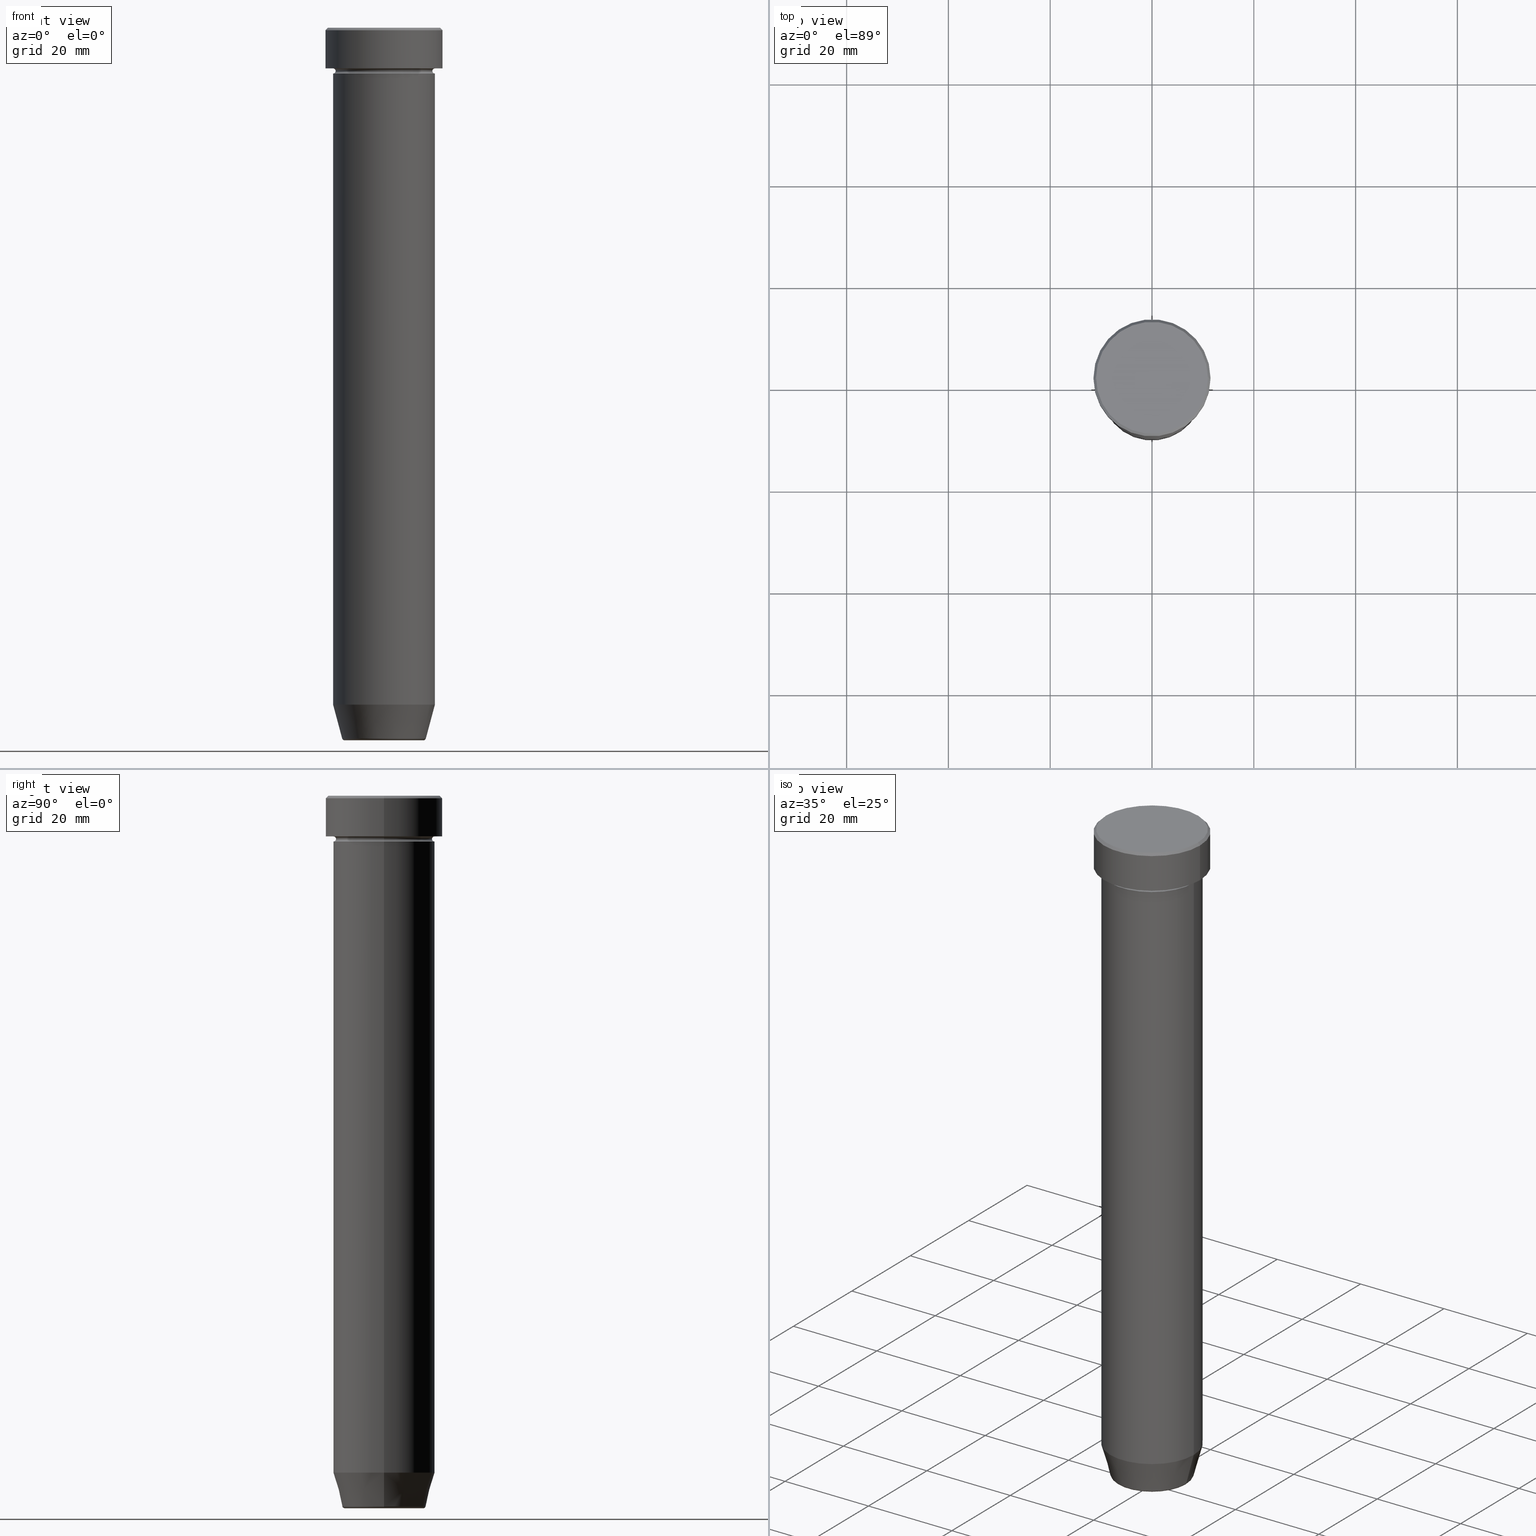
[diagram: canonical four-view strip — front | top / right | iso, engineering-drawing reading convention]
A machine part, canonical four-view strip (front | top / right | iso — engineering-drawing reading convention). The complete STEP part file that produces these views, byte-faithful:
ISO-10303-21;
HEADER;
FILE_DESCRIPTION (( 'STEP AP203' ),
    '1' );
FILE_NAME ('0ed5.STEP',
    '2024-01-02T20:52:45',
    ( '' ),
    ( '' ),
    'SwSTEP 2.0',
    'SolidWorks 2019',
    '' );
FILE_SCHEMA (( 'CONFIG_CONTROL_DESIGN' ));
ENDSEC;

DATA;
#1 = CARTESIAN_POINT ( 'NONE',  ( -8.223655072137175281, 1.115877042642910870E-15, -139.6294095225512706 ) ) ;
#2 = EDGE_CURVE ( 'NONE', #326, #137, #166, .T. ) ;
#3 = AXIS2_PLACEMENT_3D ( 'NONE', #437, #260, #528 ) ;
#4 = CYLINDRICAL_SURFACE ( 'NONE', #171, 11.50000000000000000 ) ;
#5 = CONICAL_SURFACE ( 'NONE', #88, 8.124355652982124809, 0.2617993877991501850 ) ;
#6 = ORGANIZATION ( 'NEUR�EN�', 'NEUR�EN�', '' ) ;
#7 = CARTESIAN_POINT ( 'NONE',  ( 0.000000000000000000, 0.000000000000000000, -0.5000000000000073275 ) ) ;
#8 = EDGE_CURVE ( 'NONE', #214, #175, #419, .T. ) ;
#9 = CARTESIAN_POINT ( 'NONE',  ( -9.999999999999998224, 1.224646799147353059E-15, 0.000000000000000000 ) ) ;
#10 = DIRECTION ( 'NONE',  ( 1.000000000000000000, 0.000000000000000000, 0.000000000000000000 ) ) ;
#11 = VECTOR ( 'NONE', #462, 1000.000000000000000 ) ;
#12 = EDGE_LOOP ( 'NONE', ( #294, #152, #541, #532 ) ) ;
#13 = CARTESIAN_POINT ( 'NONE',  ( 0.000000000000000000, 0.000000000000000000, -9.000000000000001776 ) ) ;
#14 = ORIENTED_EDGE ( 'NONE', *, *, #549, .F. ) ;
#15 = CARTESIAN_POINT ( 'NONE',  ( 0.000000000000000000, 0.000000000000000000, -139.4999999999999716 ) ) ;
#16 = ADVANCED_FACE ( 'NONE', ( #43, #125 ), #227, .T. ) ;
#17 = DIRECTION ( 'NONE',  ( -0.000000000000000000, -0.000000000000000000, 1.000000000000000000 ) ) ;
#18 = ORIENTED_EDGE ( 'NONE', *, *, #8, .T. ) ;
#19 = DIRECTION ( 'NONE',  ( -0.000000000000000000, -0.000000000000000000, 1.000000000000000000 ) ) ;
#20 = VERTEX_POINT ( 'NONE', #364 ) ;
#21 = CIRCLE ( 'NONE', #385, 7.740692158992648508 ) ;
#22 = CIRCLE ( 'NONE', #523, 10.00000000000000000 ) ;
#23 = DIRECTION ( 'NONE',  ( -0.000000000000000000, -0.000000000000000000, 1.000000000000000000 ) ) ;
#24 = FACE_OUTER_BOUND ( 'NONE', #291, .T. ) ;
#25 = ORIENTED_EDGE ( 'NONE', *, *, #561, .F. ) ;
#26 = EDGE_CURVE ( 'NONE', #157, #261, #53, .T. ) ;
#27 = APPLICATION_PROTOCOL_DEFINITION ( 'international standard', 'config_control_design', 1994, #263 ) ;
#28 = DIRECTION ( 'NONE',  ( -0.000000000000000000, -0.000000000000000000, 1.000000000000000000 ) ) ;
#29 = ORIENTED_EDGE ( 'NONE', *, *, #26, .T. ) ;
#30 = DIRECTION ( 'NONE',  ( 1.000000000000000000, 0.000000000000000000, 0.000000000000000000 ) ) ;
#31 = DIRECTION ( 'NONE',  ( -0.000000000000000000, -0.000000000000000000, 1.000000000000000000 ) ) ;
#32 = ORIENTED_EDGE ( 'NONE', *, *, #8, .F. ) ;
#33 = AXIS2_PLACEMENT_3D ( 'NONE', #242, #102, #241 ) ;
#34 = PERSON_AND_ORGANIZATION_ROLE ( 'classification_officer' ) ;
#35 = CARTESIAN_POINT ( 'NONE',  ( 0.000000000000000000, 0.000000000000000000, -8.000000000000000000 ) ) ;
#36 = ORIENTED_EDGE ( 'NONE', *, *, #380, .F. ) ;
#37 = DATE_AND_TIME ( #553, #425 ) ;
#38 = DIRECTION ( 'NONE',  ( -0.000000000000000000, -0.000000000000000000, 1.000000000000000000 ) ) ;
#39 = EDGE_CURVE ( 'NONE', #137, #326, #147, .T. ) ;
#40 = ORIENTED_EDGE ( 'NONE', *, *, #365, .F. ) ;
#41 = DIRECTION ( 'NONE',  ( 1.000000000000000000, 0.000000000000000000, 0.000000000000000000 ) ) ;
#42 = CC_DESIGN_PERSON_AND_ORGANIZATION_ASSIGNMENT ( #414, #34, ( #369 ) ) ;
#43 = FACE_BOUND ( 'NONE', #110, .T. ) ;
#44 = APPROVAL_ROLE ( '' ) ;
#45 = DIRECTION ( 'NONE',  ( 0.000000000000000000, 0.000000000000000000, -1.000000000000000000 ) ) ;
#46 = AXIS2_PLACEMENT_3D ( 'NONE', #397, #382, #575 ) ;
#47 = APPLICATION_CONTEXT ( 'configuration controlled 3d designs of mechanical parts and assemblies' ) ;
#48 = ADVANCED_FACE ( 'NONE', ( #354 ), #570, .T. ) ;
#49 = DATE_TIME_ROLE ( 'creation_date' ) ;
#50 = DIRECTION ( 'NONE',  ( -0.000000000000000000, -0.000000000000000000, 1.000000000000000000 ) ) ;
#51 = CC_DESIGN_PERSON_AND_ORGANIZATION_ASSIGNMENT ( #417, #232, ( #535 ) ) ;
#52 = PLANE ( 'NONE',  #476 ) ;
#53 = CIRCLE ( 'NONE', #187, 9.999999999999998224 ) ;
#54 = EDGE_LOOP ( 'NONE', ( #224, #593 ) ) ;
#55 = DIRECTION ( 'NONE',  ( 0.000000000000000000, 0.000000000000000000, -1.000000000000000000 ) ) ;
#56 = AXIS2_PLACEMENT_3D ( 'NONE', #270, #589, #272 ) ;
#57 = CIRCLE ( 'NONE', #105, 9.500000000000000000 ) ;
#58 = CARTESIAN_POINT ( 'NONE',  ( 11.50000000000000000, 0.000000000000000000, -8.000000000000000000 ) ) ;
#59 = EDGE_CURVE ( 'NONE', #20, #493, #394, .T. ) ;
#60 = CARTESIAN_POINT ( 'NONE',  ( -11.50000000000000000, 1.408343819019456176E-15, 0.000000000000000000 ) ) ;
#61 = AXIS2_PLACEMENT_3D ( 'NONE', #443, #531, #298 ) ;
#62 = CARTESIAN_POINT ( 'NONE',  ( 0.000000000000000000, 0.000000000000000000, -8.500000000000000000 ) ) ;
#63 = CIRCLE ( 'NONE', #596, 11.50000000000000000 ) ;
#64 = EDGE_LOOP ( 'NONE', ( #577, #480, #440, #274 ) ) ;
#65 = CC_DESIGN_PERSON_AND_ORGANIZATION_ASSIGNMENT ( #83, #222, ( #494 ) ) ;
#66 = DIRECTION ( 'NONE',  ( -0.000000000000000000, -0.000000000000000000, 1.000000000000000000 ) ) ;
#67 = ORIENTED_EDGE ( 'NONE', *, *, #207, .T. ) ;
#68 = APPLICATION_PROTOCOL_DEFINITION ( 'international standard', 'config_control_design', 1994, #47 ) ;
#69 = DIRECTION ( 'NONE',  ( -0.000000000000000000, -0.000000000000000000, 1.000000000000000000 ) ) ;
#70 = ORIENTED_EDGE ( 'NONE', *, *, #72, .T. ) ;
#71 = CARTESIAN_POINT ( 'NONE',  ( 0.000000000000000000, 0.000000000000000000, -139.9999999999999716 ) ) ;
#72 = EDGE_CURVE ( 'NONE', #282, #185, #139, .T. ) ;
#73 = ORIENTED_EDGE ( 'NONE', *, *, #571, .T. ) ;
#74 = AXIS2_PLACEMENT_3D ( 'NONE', #525, #536, #387 ) ;
#75 = CONICAL_SURFACE ( 'NONE', #99, 8.124355652982124809, 0.2617993877991501850 ) ;
#76 = DIRECTION ( 'NONE',  ( -0.000000000000000000, -0.000000000000000000, 1.000000000000000000 ) ) ;
#77 = CARTESIAN_POINT ( 'NONE',  ( 9.999999999999998224, 0.000000000000000000, 0.000000000000000000 ) ) ;
#78 = CC_DESIGN_DATE_AND_TIME_ASSIGNMENT ( #362, #318, ( #369 ) ) ;
#79 = ORIENTED_EDGE ( 'NONE', *, *, #502, .T. ) ;
#80 = LINE ( 'NONE', #161, #376 ) ;
#81 = CARTESIAN_POINT ( 'NONE',  ( -7.740692158992648508, 9.775343368540027302E-16, -139.9999999999999716 ) ) ;
#82 = EDGE_LOOP ( 'NONE', ( #123, #455 ) ) ;
#83 = PERSON_AND_ORGANIZATION ( #101, #6 ) ;
#84 = DIRECTION ( 'NONE',  ( 1.000000000000000000, 0.000000000000000000, 0.000000000000000000 ) ) ;
#85 = ORIENTED_EDGE ( 'NONE', *, *, #431, .T. ) ;
#86 = AXIS2_PLACEMENT_3D ( 'NONE', #555, #50, #314 ) ;
#87 = ADVANCED_FACE ( 'NONE', ( #202 ), #539, .T. ) ;
#88 = AXIS2_PLACEMENT_3D ( 'NONE', #176, #546, #223 ) ;
#89 = CIRCLE ( 'NONE', #172, 11.00000000000000000 ) ;
#90 = DIRECTION ( 'NONE',  ( -0.000000000000000000, -0.000000000000000000, 1.000000000000000000 ) ) ;
#91 = EDGE_LOOP ( 'NONE', ( #461, #501, #163, #268 ) ) ;
#92 = APPROVAL_DATE_TIME ( #37, #156 ) ;
#93 = FACE_OUTER_BOUND ( 'NONE', #82, .T. ) ;
#94 = ORIENTED_EDGE ( 'NONE', *, *, #262, .T. ) ;
#95 = CARTESIAN_POINT ( 'NONE',  ( -10.00000000000000000, 0.000000000000000000, -8.500000000000000000 ) ) ;
#96 = EDGE_CURVE ( 'NONE', #261, #493, #479, .T. ) ;
#97 = CIRCLE ( 'NONE', #284, 9.999999999999998224 ) ;
#98 = FACE_OUTER_BOUND ( 'NONE', #64, .T. ) ;
#99 = AXIS2_PLACEMENT_3D ( 'NONE', #71, #112, #524 ) ;
#100 = CARTESIAN_POINT ( 'NONE',  ( 0.000000000000000000, 0.000000000000000000, -132.9999999999999432 ) ) ;
#101 = PERSON ( 'NEUR�EN�', 'NEUR�EN�', 'NEUR�EN�', ('NEUR�EN�'), ('NEUR�EN�'), ('NEUR�EN�') ) ;
#102 = DIRECTION ( 'NONE',  ( -0.000000000000000000, -0.000000000000000000, 1.000000000000000000 ) ) ;
#103 = EDGE_CURVE ( 'NONE', #526, #208, #205, .T. ) ;
#104 = CARTESIAN_POINT ( 'NONE',  ( 0.000000000000000000, 0.000000000000000000, -22.00000000000000000 ) ) ;
#105 = AXIS2_PLACEMENT_3D ( 'NONE', #62, #23, #390 ) ;
#106 = DIRECTION ( 'NONE',  ( -0.000000000000000000, -0.000000000000000000, 1.000000000000000000 ) ) ;
#107 = DIRECTION ( 'NONE',  ( 0.000000000000000000, -0.000000000000000000, 1.000000000000000000 ) ) ;
#108 = EDGE_CURVE ( 'NONE', #175, #114, #309, .T. ) ;
#109 = AXIS2_PLACEMENT_3D ( 'NONE', #188, #38, #41 ) ;
#110 = EDGE_LOOP ( 'NONE', ( #203, #447 ) ) ;
#111 = CC_DESIGN_PERSON_AND_ORGANIZATION_ASSIGNMENT ( #506, #138, ( #535 ) ) ;
#112 = DIRECTION ( 'NONE',  ( -0.000000000000000000, -0.000000000000000000, 1.000000000000000000 ) ) ;
#113 = CARTESIAN_POINT ( 'NONE',  ( 10.00000000000000000, 0.000000000000000000, 0.000000000000000000 ) ) ;
#114 = VERTEX_POINT ( 'NONE', #116 ) ;
#115 = EDGE_CURVE ( 'NONE', #175, #137, #475, .T. ) ;
#116 = CARTESIAN_POINT ( 'NONE',  ( 10.00000000000000000, 0.000000000000000000, -9.000000000000001776 ) ) ;
#117 = ORIENTED_EDGE ( 'NONE', *, *, #236, .T. ) ;
#118 = DIRECTION ( 'NONE',  ( -0.000000000000000000, -0.000000000000000000, 1.000000000000000000 ) ) ;
#119 = VERTEX_POINT ( 'NONE', #496 ) ;
#120 = AXIS2_PLACEMENT_3D ( 'NONE', #184, #90, #363 ) ;
#121 = COORDINATED_UNIVERSAL_TIME_OFFSET ( 1, 0, .AHEAD. ) ;
#122 = FACE_OUTER_BOUND ( 'NONE', #543, .T. ) ;
#123 = ORIENTED_EDGE ( 'NONE', *, *, #431, .F. ) ;
#124 = CARTESIAN_POINT ( 'NONE',  ( 0.000000000000000000, 0.000000000000000000, -22.00000000000000000 ) ) ;
#125 = FACE_OUTER_BOUND ( 'NONE', #297, .T. ) ;
#126 = ADVANCED_FACE ( 'NONE', ( #24 ), #398, .F. ) ;
#127 = COORDINATED_UNIVERSAL_TIME_OFFSET ( 1, 0, .AHEAD. ) ;
#128 = DIRECTION ( 'NONE',  ( 0.000000000000000000, -0.000000000000000000, 1.000000000000000000 ) ) ;
#129 = ORIENTED_EDGE ( 'NONE', *, *, #164, .T. ) ;
#130 = AXIS2_PLACEMENT_3D ( 'NONE', #217, #391, #169 ) ;
#131 = CC_DESIGN_APPROVAL ( #303, ( #535 ) ) ;
#132 = APPROVAL_DATE_TIME ( #230, #303 ) ;
#133 = CARTESIAN_POINT ( 'NONE',  ( -9.500000000000000000, 1.194030629168669469E-15, -8.500000000000000000 ) ) ;
#134 = EDGE_LOOP ( 'NONE', ( #40, #129, #352, #14 ) ) ;
#135 = ADVANCED_FACE ( 'NONE', ( #122 ), #498, .T. ) ;
#136 = CARTESIAN_POINT ( 'NONE',  ( 0.000000000000000000, 0.000000000000000000, -139.6294095225512706 ) ) ;
#137 = VERTEX_POINT ( 'NONE', #395 ) ;
#138 = PERSON_AND_ORGANIZATION_ROLE ( 'creator' ) ;
#139 = CIRCLE ( 'NONE', #3, 7.740692158992648508 ) ;
#140 = DIRECTION ( 'NONE',  ( -1.000000000000000000, 1.224646799147353454E-16, 0.000000000000000000 ) ) ;
#141 = AXIS2_PLACEMENT_3D ( 'NONE', #409, #128, #319 ) ;
#142 = DIRECTION ( 'NONE',  ( -0.000000000000000000, -0.000000000000000000, 1.000000000000000000 ) ) ;
#143 = APPROVAL_PERSON_ORGANIZATION ( #349, #174, #168 ) ;
#144 = CARTESIAN_POINT ( 'NONE',  ( 0.000000000000000000, 0.000000000000000000, -8.500000000000000000 ) ) ;
#145 = ADVANCED_FACE ( 'NONE', ( #165 ), #150, .T. ) ;
#146 = LINE ( 'NONE', #9, #191 ) ;
#147 = CIRCLE ( 'NONE', #481, 10.00000000000000000 ) ;
#148 = EDGE_LOOP ( 'NONE', ( #94, #67, #529, #36 ) ) ;
#149 = CARTESIAN_POINT ( 'NONE',  ( 0.000000000000000000, 0.000000000000000000, -8.000000000000000000 ) ) ;
#150 = TOROIDAL_SURFACE ( 'NONE', #585, 7.740692158992648508, 0.5000000000000000000 ) ;
#151 = CIRCLE ( 'NONE', #558, 11.50000000000000000 ) ;
#152 = ORIENTED_EDGE ( 'NONE', *, *, #72, .F. ) ;
#153 = CARTESIAN_POINT ( 'NONE',  ( -11.00000000000000000, 0.000000000000000000, 0.000000000000000000 ) ) ;
#154 = EDGE_CURVE ( 'NONE', #200, #114, #264, .T. ) ;
#155 = DIRECTION ( 'NONE',  ( 1.000000000000000000, 0.000000000000000000, 0.000000000000000000 ) ) ;
#156 = APPROVAL ( #550, 'NEUR�EN�' ) ;
#157 = VERTEX_POINT ( 'NONE', #342 ) ;
#158 = CARTESIAN_POINT ( 'NONE',  ( 0.000000000000000000, 0.000000000000000000, 0.000000000000000000 ) ) ;
#159 = LOCAL_TIME ( 21, 52, 45.00000000000000000, #307 ) ;
#160 = EDGE_LOOP ( 'NONE', ( #18, #357, #580, #388 ) ) ;
#161 = CARTESIAN_POINT ( 'NONE',  ( -11.00000000000000000, 0.000000000000000000, 0.000000000000000000 ) ) ;
#162 = CARTESIAN_POINT ( 'NONE',  ( 0.000000000000000000, 0.000000000000000000, -139.4999999999999716 ) ) ;
#163 = ORIENTED_EDGE ( 'NONE', *, *, #372, .T. ) ;
#164 = EDGE_CURVE ( 'NONE', #185, #334, #337, .T. ) ;
#165 = FACE_OUTER_BOUND ( 'NONE', #134, .T. ) ;
#166 = CIRCLE ( 'NONE', #581, 10.00000000000000000 ) ;
#167 = ORIENTED_EDGE ( 'NONE', *, *, #115, .F. ) ;
#168 = APPROVAL_ROLE ( '' ) ;
#169 = DIRECTION ( 'NONE',  ( -1.000000000000000000, -1.224646799147353454E-16, 0.000000000000000000 ) ) ;
#170 = ORIENTED_EDGE ( 'NONE', *, *, #96, .T. ) ;
#171 = AXIS2_PLACEMENT_3D ( 'NONE', #513, #371, #433 ) ;
#172 = AXIS2_PLACEMENT_3D ( 'NONE', #562, #567, #560 ) ;
#173 = CARTESIAN_POINT ( 'NONE',  ( 0.000000000000000000, 0.000000000000000000, -22.00000000000000000 ) ) ;
#174 = APPROVAL ( #212, 'NEUR�EN�' ) ;
#175 = VERTEX_POINT ( 'NONE', #350 ) ;
#176 = CARTESIAN_POINT ( 'NONE',  ( 0.000000000000000000, 0.000000000000000000, -139.9999999999999716 ) ) ;
#177 = ORIENTED_EDGE ( 'NONE', *, *, #251, .F. ) ;
#178 = COORDINATED_UNIVERSAL_TIME_OFFSET ( 1, 0, .AHEAD. ) ;
#179 = CARTESIAN_POINT ( 'NONE',  ( 9.999999999999998224, 0.000000000000000000, -132.9999999999999432 ) ) ;
#180 = ORIENTED_EDGE ( 'NONE', *, *, #472, .T. ) ;
#181 = EDGE_CURVE ( 'NONE', #526, #200, #454, .T. ) ;
#182 = CIRCLE ( 'NONE', #197, 8.223655072137175281 ) ;
#183 = APPROVAL_DATE_TIME ( #464, #174 ) ;
#184 = CARTESIAN_POINT ( 'NONE',  ( 0.000000000000000000, 0.000000000000000000, -8.500000000000000000 ) ) ;
#185 = VERTEX_POINT ( 'NONE', #81 ) ;
#186 = DIRECTION ( 'NONE',  ( 1.000000000000000000, 0.000000000000000000, 0.000000000000000000 ) ) ;
#187 = AXIS2_PLACEMENT_3D ( 'NONE', #306, #489, #338 ) ;
#188 = CARTESIAN_POINT ( 'NONE',  ( 0.000000000000000000, 0.000000000000000000, 0.000000000000000000 ) ) ;
#189 = AXIS2_PLACEMENT_3D ( 'NONE', #35, #505, #186 ) ;
#190 = FACE_OUTER_BOUND ( 'NONE', #331, .T. ) ;
#191 = VECTOR ( 'NONE', #194, 1000.000000000000000 ) ;
#192 = EDGE_CURVE ( 'NONE', #493, #20, #441, .T. ) ;
#193 = CARTESIAN_POINT ( 'NONE',  ( 11.50000000000000000, 0.000000000000000000, 0.000000000000000000 ) ) ;
#194 = DIRECTION ( 'NONE',  ( -0.000000000000000000, -0.000000000000000000, 1.000000000000000000 ) ) ;
#195 = ADVANCED_FACE ( 'NONE', ( #98 ), #5, .T. ) ;
#196 = DIRECTION ( 'NONE',  ( -0.000000000000000000, -0.000000000000000000, 1.000000000000000000 ) ) ;
#197 = AXIS2_PLACEMENT_3D ( 'NONE', #136, #142, #308 ) ;
#198 = LOCAL_TIME ( 21, 52, 45.00000000000000000, #127 ) ;
#199 = CARTESIAN_POINT ( 'NONE',  ( 8.124355652982124809, 0.000000000000000000, -139.9999999999999716 ) ) ;
#200 = VERTEX_POINT ( 'NONE', #404 ) ;
#201 = FACE_OUTER_BOUND ( 'NONE', #148, .T. ) ;
#202 = FACE_OUTER_BOUND ( 'NONE', #435, .T. ) ;
#203 = ORIENTED_EDGE ( 'NONE', *, *, #2, .T. ) ;
#204 = FACE_OUTER_BOUND ( 'NONE', #12, .T. ) ;
#205 = LINE ( 'NONE', #255, #246 ) ;
#206 = VECTOR ( 'NONE', #289, 1000.000000000000000 ) ;
#207 = EDGE_CURVE ( 'NONE', #334, #157, #267, .T. ) ;
#208 = VERTEX_POINT ( 'NONE', #400 ) ;
#209 = CYLINDRICAL_SURFACE ( 'NONE', #240, 11.50000000000000000 ) ;
#210 = DIRECTION ( 'NONE',  ( 1.000000000000000000, 0.000000000000000000, 0.000000000000000000 ) ) ;
#211 = ORIENTED_EDGE ( 'NONE', *, *, #483, .T. ) ;
#212 = APPROVAL_STATUS ( 'not_yet_approved' ) ;
#213 = DIRECTION ( 'NONE',  ( -0.000000000000000000, -0.000000000000000000, 1.000000000000000000 ) ) ;
#214 = VERTEX_POINT ( 'NONE', #133 ) ;
#215 = EDGE_CURVE ( 'NONE', #552, #119, #228, .T. ) ;
#216 = DIRECTION ( 'NONE',  ( -0.000000000000000000, -0.000000000000000000, 1.000000000000000000 ) ) ;
#217 = CARTESIAN_POINT ( 'NONE',  ( 10.00000000000000000, 1.224646799147353256E-15, -8.500000000000000000 ) ) ;
#218 = CARTESIAN_POINT ( 'NONE',  ( 0.000000000000000000, 0.000000000000000000, -8.000000000000000000 ) ) ;
#219 = VECTOR ( 'NONE', #511, 1000.000000000000000 ) ;
#220 = DIRECTION ( 'NONE',  ( -1.000000000000000000, 0.000000000000000000, 0.000000000000000000 ) ) ;
#221 = VERTEX_POINT ( 'NONE', #316 ) ;
#222 = PERSON_AND_ORGANIZATION_ROLE ( 'creator' ) ;
#223 = DIRECTION ( 'NONE',  ( 1.000000000000000000, 0.000000000000000000, 0.000000000000000000 ) ) ;
#224 = ORIENTED_EDGE ( 'NONE', *, *, #192, .T. ) ;
#225 = AXIS2_PLACEMENT_3D ( 'NONE', #124, #31, #210 ) ;
#226 = PLANE ( 'NONE',  #141 ) ;
#227 = PLANE ( 'NONE',  #405 ) ;
#228 = CIRCLE ( 'NONE', #321, 11.50000000000000000 ) ;
#229 = AXIS2_PLACEMENT_3D ( 'NONE', #393, #76, #332 ) ;
#230 = DATE_AND_TIME ( #591, #159 ) ;
#231 = CARTESIAN_POINT ( 'NONE',  ( 0.000000000000000000, 0.000000000000000000, 0.000000000000000000 ) ) ;
#232 = PERSON_AND_ORGANIZATION_ROLE ( 'design_supplier' ) ;
#233 = CARTESIAN_POINT ( 'NONE',  ( 0.000000000000000000, 0.000000000000000000, 0.000000000000000000 ) ) ;
#234 = EDGE_LOOP ( 'NONE', ( #564, #340, #378, #355 ) ) ;
#235 = AXIS2_PLACEMENT_3D ( 'NONE', #406, #315, #588 ) ;
#236 = EDGE_CURVE ( 'NONE', #504, #317, #545, .T. ) ;
#237 = LINE ( 'NONE', #60, #219 ) ;
#238 = ORIENTED_EDGE ( 'NONE', *, *, #59, .F. ) ;
#239 = CIRCLE ( 'NONE', #86, 8.223655072137175281 ) ;
#240 = AXIS2_PLACEMENT_3D ( 'NONE', #335, #66, #248 ) ;
#241 = DIRECTION ( 'NONE',  ( 1.000000000000000000, 0.000000000000000000, 0.000000000000000000 ) ) ;
#242 = CARTESIAN_POINT ( 'NONE',  ( 0.000000000000000000, 0.000000000000000000, -22.00000000000000000 ) ) ;
#243 = EDGE_CURVE ( 'NONE', #214, #208, #563, .T. ) ;
#244 = DIRECTION ( 'NONE',  ( 1.000000000000000000, 0.000000000000000000, 0.000000000000000000 ) ) ;
#245 = LINE ( 'NONE', #193, #432 ) ;
#246 = VECTOR ( 'NONE', #19, 1000.000000000000000 ) ;
#247 = ORIENTED_EDGE ( 'NONE', *, *, #108, .F. ) ;
#248 = DIRECTION ( 'NONE',  ( 1.000000000000000000, 0.000000000000000000, 0.000000000000000000 ) ) ;
#249 = DIRECTION ( 'NONE',  ( 0.000000000000000000, 0.000000000000000000, -1.000000000000000000 ) ) ;
#250 = ORIENTED_EDGE ( 'NONE', *, *, #516, .F. ) ;
#251 = EDGE_CURVE ( 'NONE', #450, #396, #410, .T. ) ;
#252 = CARTESIAN_POINT ( 'NONE',  ( -7.740692158992648508, 9.479613875695361876E-16, -139.4999999999999716 ) ) ;
#253 = ORIENTED_EDGE ( 'NONE', *, *, #413, .F. ) ;
#254 = DIRECTION ( 'NONE',  ( 1.000000000000000000, 0.000000000000000000, 0.000000000000000000 ) ) ;
#255 = CARTESIAN_POINT ( 'NONE',  ( -10.00000000000000000, 1.224646799147353256E-15, 0.000000000000000000 ) ) ;
#256 = AXIS2_PLACEMENT_3D ( 'NONE', #233, #418, #244 ) ;
#257 =( GEOMETRIC_REPRESENTATION_CONTEXT ( 3 ) GLOBAL_UNCERTAINTY_ASSIGNED_CONTEXT ( ( #568 ) ) GLOBAL_UNIT_ASSIGNED_CONTEXT ( ( #482, #259, #445 ) ) REPRESENTATION_CONTEXT ( 'NONE', 'WORKASPACE' ) );
#258 = ORIENTED_EDGE ( 'NONE', *, *, #358, .T. ) ;
#259 =( NAMED_UNIT ( * ) PLANE_ANGLE_UNIT ( ) SI_UNIT ( $, .RADIAN. ) );
#260 = DIRECTION ( 'NONE',  ( 0.000000000000000000, 0.000000000000000000, -1.000000000000000000 ) ) ;
#261 = VERTEX_POINT ( 'NONE', #179 ) ;
#262 = EDGE_CURVE ( 'NONE', #221, #334, #239, .T. ) ;
#263 = APPLICATION_CONTEXT ( 'configuration controlled 3d designs of mechanical parts and assemblies' ) ;
#264 = LINE ( 'NONE', #113, #277 ) ;
#265 = ORIENTED_EDGE ( 'NONE', *, *, #154, .F. ) ;
#266 = PERSON_AND_ORGANIZATION ( #101, #6 ) ;
#267 = LINE ( 'NONE', #279, #469 ) ;
#268 = ORIENTED_EDGE ( 'NONE', *, *, #413, .T. ) ;
#269 = TOROIDAL_SURFACE ( 'NONE', #339, 10.00000000000000000, 0.5000000000000000000 ) ;
#270 = CARTESIAN_POINT ( 'NONE',  ( 0.000000000000000000, 10.00000000000000000, -22.00000000000000000 ) ) ;
#271 = DIRECTION ( 'NONE',  ( -0.000000000000000000, -0.000000000000000000, 1.000000000000000000 ) ) ;
#272 = DIRECTION ( 'NONE',  ( -1.000000000000000000, 0.000000000000000000, -0.000000000000000000 ) ) ;
#273 = ADVANCED_FACE ( 'NONE', ( #503 ), #573, .T. ) ;
#274 = ORIENTED_EDGE ( 'NONE', *, *, #26, .F. ) ;
#275 = CLOSED_SHELL ( 'NONE', ( #273, #401, #292, #87, #389, #280, #510, #594, #16, #344, #126, #582, #135 ) ) ;
#276 = DIRECTION ( 'NONE',  ( -0.000000000000000000, -1.000000000000000000, -0.000000000000000000 ) ) ;
#277 = VECTOR ( 'NONE', #587, 1000.000000000000000 ) ;
#278 = APPROVAL_PERSON_ORGANIZATION ( #266, #156, #456 ) ;
#279 = CARTESIAN_POINT ( 'NONE',  ( -8.124355652982124809, 9.949466145559264750E-16, -139.9999999999999716 ) ) ;
#280 = ADVANCED_FACE ( 'NONE', ( #93 ), #457, .T. ) ;
#281 = DIRECTION ( 'NONE',  ( 1.000000000000000000, 0.000000000000000000, 0.000000000000000000 ) ) ;
#282 = VERTEX_POINT ( 'NONE', #367 ) ;
#283 = CYLINDRICAL_SURFACE ( 'NONE', #300, 9.999999999999998224 ) ;
#284 = AXIS2_PLACEMENT_3D ( 'NONE', #100, #559, #281 ) ;
#285 = LINE ( 'NONE', #199, #206 ) ;
#286 = ADVANCED_FACE ( 'NONE', ( #356 ), #226, .F. ) ;
#287 = DIRECTION ( 'NONE',  ( -1.000000000000000000, 0.000000000000000000, -0.000000000000000000 ) ) ;
#288 = ORIENTED_EDGE ( 'NONE', *, *, #103, .T. ) ;
#289 = DIRECTION ( 'NONE',  ( 0.2588190451025214611, 0.000000000000000000, 0.9659258262890680902 ) ) ;
#290 = DIRECTION ( 'NONE',  ( 0.000000000000000000, 0.000000000000000000, -1.000000000000000000 ) ) ;
#291 = EDGE_LOOP ( 'NONE', ( #423, #250, #420, #79 ) ) ;
#292 = ADVANCED_FACE ( 'NONE', ( #597 ), #463, .F. ) ;
#293 = CARTESIAN_POINT ( 'NONE',  ( 0.000000000000000000, 0.000000000000000000, -8.000000000000000000 ) ) ;
#294 = ORIENTED_EDGE ( 'NONE', *, *, #164, .F. ) ;
#295 = DIRECTION ( 'NONE',  ( 0.000000000000000000, 0.000000000000000000, 1.000000000000000000 ) ) ;
#296 = DIRECTION ( 'NONE',  ( -0.000000000000000000, -0.000000000000000000, 1.000000000000000000 ) ) ;
#297 = EDGE_LOOP ( 'NONE', ( #381, #177 ) ) ;
#298 = DIRECTION ( 'NONE',  ( 1.000000000000000000, 0.000000000000000000, 0.000000000000000000 ) ) ;
#299 = EDGE_CURVE ( 'NONE', #317, #119, #551, .T. ) ;
#300 = AXIS2_PLACEMENT_3D ( 'NONE', #379, #428, #466 ) ;
#301 = EDGE_LOOP ( 'NONE', ( #70, #497 ) ) ;
#302 = DIRECTION ( 'NONE',  ( 1.224646799147353207E-16, 1.000000000000000000, 0.000000000000000000 ) ) ;
#303 = APPROVAL ( #407, 'NEUR�EN�' ) ;
#304 = EDGE_LOOP ( 'NONE', ( #117, #521 ) ) ;
#305 = CARTESIAN_POINT ( 'NONE',  ( 0.000000000000000000, 0.000000000000000000, 0.000000000000000000 ) ) ;
#306 = CARTESIAN_POINT ( 'NONE',  ( 0.000000000000000000, 0.000000000000000000, -132.9999999999999432 ) ) ;
#307 = COORDINATED_UNIVERSAL_TIME_OFFSET ( 1, 0, .AHEAD. ) ;
#308 = DIRECTION ( 'NONE',  ( -1.000000000000000000, 0.000000000000000000, 0.000000000000000000 ) ) ;
#309 = CIRCLE ( 'NONE', #74, 0.5000000000000004441 ) ;
#310 = ORIENTED_EDGE ( 'NONE', *, *, #427, .T. ) ;
#311 = TOROIDAL_SURFACE ( 'NONE', #500, 7.740692158992648508, 0.5000000000000000000 ) ;
#312 = EDGE_CURVE ( 'NONE', #334, #221, #182, .T. ) ;
#313 = COORDINATED_UNIVERSAL_TIME_OFFSET ( 1, 0, .AHEAD. ) ;
#314 = DIRECTION ( 'NONE',  ( -1.000000000000000000, 0.000000000000000000, 0.000000000000000000 ) ) ;
#315 = DIRECTION ( 'NONE',  ( -0.000000000000000000, -0.000000000000000000, 1.000000000000000000 ) ) ;
#316 = CARTESIAN_POINT ( 'NONE',  ( 8.223655072137175281, 0.000000000000000000, -139.6294095225512706 ) ) ;
#317 = VERTEX_POINT ( 'NONE', #323 ) ;
#318 = DATE_TIME_ROLE ( 'classification_date' ) ;
#319 = DIRECTION ( 'NONE',  ( 1.000000000000000000, 0.000000000000000000, 0.000000000000000000 ) ) ;
#320 = CC_DESIGN_PERSON_AND_ORGANIZATION_ASSIGNMENT ( #487, #442, ( #416 ) ) ;
#321 = AXIS2_PLACEMENT_3D ( 'NONE', #360, #366, #84 ) ;
#322 = CC_DESIGN_SECURITY_CLASSIFICATION ( #369, ( #535 ) ) ;
#323 = CARTESIAN_POINT ( 'NONE',  ( 11.00000000000000000, 1.377727649040772389E-15, 0.000000000000000000 ) ) ;
#324 = DIRECTION ( 'NONE',  ( 1.000000000000000000, 0.000000000000000000, 0.000000000000000000 ) ) ;
#325 = CARTESIAN_POINT ( 'NONE',  ( 0.000000000000000000, 0.000000000000000000, -139.9999999999999716 ) ) ;
#326 = VERTEX_POINT ( 'NONE', #499 ) ;
#327 = AXIS2_PLACEMENT_3D ( 'NONE', #446, #213, #492 ) ;
#328 = APPROVAL_PERSON_ORGANIZATION ( #452, #303, #44 ) ;
#329 = DIRECTION ( 'NONE',  ( -0.000000000000000000, -0.000000000000000000, 1.000000000000000000 ) ) ;
#330 = FACE_OUTER_BOUND ( 'NONE', #304, .T. ) ;
#331 = EDGE_LOOP ( 'NONE', ( #211, #310, #478, #572 ) ) ;
#332 = DIRECTION ( 'NONE',  ( 1.000000000000000000, 0.000000000000000000, 0.000000000000000000 ) ) ;
#333 = EDGE_CURVE ( 'NONE', #214, #326, #522, .T. ) ;
#334 = VERTEX_POINT ( 'NONE', #1 ) ;
#335 = CARTESIAN_POINT ( 'NONE',  ( 0.000000000000000000, 0.000000000000000000, 0.000000000000000000 ) ) ;
#336 = ADVANCED_BREP_SHAPE_REPRESENTATION ( '0ed5', ( #345, #348, #547 ), #257 ) ;
#337 = CIRCLE ( 'NONE', #486, 0.4999999999999995559 ) ;
#338 = DIRECTION ( 'NONE',  ( 1.000000000000000000, 0.000000000000000000, 0.000000000000000000 ) ) ;
#339 = AXIS2_PLACEMENT_3D ( 'NONE', #448, #290, #341 ) ;
#340 = ORIENTED_EDGE ( 'NONE', *, *, #181, .T. ) ;
#341 = DIRECTION ( 'NONE',  ( -1.000000000000000000, 0.000000000000000000, 0.000000000000000000 ) ) ;
#342 = CARTESIAN_POINT ( 'NONE',  ( -9.999999999999998224, 1.224646799147353059E-15, -132.9999999999999432 ) ) ;
#343 = EDGE_LOOP ( 'NONE', ( #32, #430, #73, #247 ) ) ;
#344 = ADVANCED_FACE ( 'NONE', ( #554 ), #507, .T. ) ;
#345 = MANIFOLD_SOLID_BREP ( 'Zkosen�1', #275 ) ;
#346 = DIRECTION ( 'NONE',  ( -1.000000000000000000, 0.000000000000000000, 0.000000000000000000 ) ) ;
#347 = EDGE_LOOP ( 'NONE', ( #167, #392, #474, #384 ) ) ;
#348 = MANIFOLD_SOLID_BREP ( 'Zaoblit4', #495 ) ;
#349 = PERSON_AND_ORGANIZATION ( #101, #6 ) ;
#350 = CARTESIAN_POINT ( 'NONE',  ( 9.500000000000000000, 0.000000000000000000, -8.500000000000000000 ) ) ;
#351 = AXIS2_PLACEMENT_3D ( 'NONE', #383, #69, #576 ) ;
#352 = ORIENTED_EDGE ( 'NONE', *, *, #262, .F. ) ;
#353 = SECURITY_CLASSIFICATION_LEVEL ( 'unclassified' ) ;
#354 = FACE_OUTER_BOUND ( 'NONE', #444, .T. ) ;
#355 = ORIENTED_EDGE ( 'NONE', *, *, #571, .F. ) ;
#356 = FACE_OUTER_BOUND ( 'NONE', #301, .T. ) ;
#357 = ORIENTED_EDGE ( 'NONE', *, *, #115, .T. ) ;
#358 = EDGE_CURVE ( 'NONE', #261, #157, #97, .T. ) ;
#359 = CALENDAR_DATE ( 2024, 2, 1 ) ;
#360 = CARTESIAN_POINT ( 'NONE',  ( 0.000000000000000000, 0.000000000000000000, -0.5000000000000073275 ) ) ;
#361 = ORIENTED_EDGE ( 'NONE', *, *, #467, .F. ) ;
#362 = DATE_AND_TIME ( #359, #574 ) ;
#363 = DIRECTION ( 'NONE',  ( 1.000000000000000000, 0.000000000000000000, 0.000000000000000000 ) ) ;
#364 = CARTESIAN_POINT ( 'NONE',  ( -10.00000000000000000, 1.224646799147353256E-15, -22.00000000000000000 ) ) ;
#365 = EDGE_CURVE ( 'NONE', #185, #282, #21, .T. ) ;
#366 = DIRECTION ( 'NONE',  ( 0.000000000000000000, 0.000000000000000000, -1.000000000000000000 ) ) ;
#367 = CARTESIAN_POINT ( 'NONE',  ( 7.740692158992648508, 0.000000000000000000, -139.9999999999999716 ) ) ;
#368 = AXIS2_PLACEMENT_3D ( 'NONE', #173, #439, #592 ) ;
#369 = SECURITY_CLASSIFICATION ( '', '', #353 ) ;
#370 = DIRECTION ( 'NONE',  ( 0.000000000000000000, 0.000000000000000000, -1.000000000000000000 ) ) ;
#371 = DIRECTION ( 'NONE',  ( -0.000000000000000000, -0.000000000000000000, 1.000000000000000000 ) ) ;
#372 = EDGE_CURVE ( 'NONE', #396, #119, #245, .T. ) ;
#373 = DIRECTION ( 'NONE',  ( 1.000000000000000000, 0.000000000000000000, 0.000000000000000000 ) ) ;
#374 = ORIENTED_EDGE ( 'NONE', *, *, #215, .F. ) ;
#375 = AXIS2_PLACEMENT_3D ( 'NONE', #231, #459, #220 ) ;
#376 = VECTOR ( 'NONE', #530, 1000.000000000000000 ) ;
#377 = CARTESIAN_POINT ( 'NONE',  ( -11.50000000000000000, 1.408343819019456176E-15, -8.000000000000000000 ) ) ;
#378 = ORIENTED_EDGE ( 'NONE', *, *, #154, .T. ) ;
#379 = CARTESIAN_POINT ( 'NONE',  ( 0.000000000000000000, 0.000000000000000000, 0.000000000000000000 ) ) ;
#380 = EDGE_CURVE ( 'NONE', #221, #261, #285, .T. ) ;
#381 = ORIENTED_EDGE ( 'NONE', *, *, #483, .F. ) ;
#382 = DIRECTION ( 'NONE',  ( 0.000000000000000000, -1.000000000000000000, 0.000000000000000000 ) ) ;
#383 = CARTESIAN_POINT ( 'NONE',  ( 0.000000000000000000, 0.000000000000000000, -8.500000000000000000 ) ) ;
#384 = ORIENTED_EDGE ( 'NONE', *, *, #39, .F. ) ;
#385 = AXIS2_PLACEMENT_3D ( 'NONE', #325, #471, #373 ) ;
#386 = LOCAL_TIME ( 21, 52, 45.00000000000000000, #121 ) ;
#387 = DIRECTION ( 'NONE',  ( 0.000000000000000000, 0.000000000000000000, -1.000000000000000000 ) ) ;
#388 = ORIENTED_EDGE ( 'NONE', *, *, #333, .F. ) ;
#389 = ADVANCED_FACE ( 'NONE', ( #190 ), #4, .T. ) ;
#390 = DIRECTION ( 'NONE',  ( 1.000000000000000000, 0.000000000000000000, 0.000000000000000000 ) ) ;
#391 = DIRECTION ( 'NONE',  ( -1.224646799147353207E-16, 1.000000000000000000, 0.000000000000000000 ) ) ;
#392 = ORIENTED_EDGE ( 'NONE', *, *, #516, .T. ) ;
#393 = CARTESIAN_POINT ( 'NONE',  ( 0.000000000000000000, 0.000000000000000000, -9.000000000000001776 ) ) ;
#394 = CIRCLE ( 'NONE', #225, 10.00000000000000000 ) ;
#395 = CARTESIAN_POINT ( 'NONE',  ( 10.00000000000000000, 1.224646799147353256E-15, -8.000000000000000000 ) ) ;
#396 = VERTEX_POINT ( 'NONE', #58 ) ;
#397 = CARTESIAN_POINT ( 'NONE',  ( 7.740692158992648508, 0.000000000000000000, -139.4999999999999716 ) ) ;
#398 = TOROIDAL_SURFACE ( 'NONE', #351, 10.00000000000000000, 0.5000000000000000000 ) ;
#399 = DIRECTION ( 'NONE',  ( -1.000000000000000000, 0.000000000000000000, -0.000000000000000000 ) ) ;
#400 = CARTESIAN_POINT ( 'NONE',  ( -10.00000000000000000, 1.224646799147353256E-15, -9.000000000000001776 ) ) ;
#401 = ADVANCED_FACE ( 'NONE', ( #421 ), #514, .F. ) ;
#402 = ORIENTED_EDGE ( 'NONE', *, *, #299, .T. ) ;
#403 = CALENDAR_DATE ( 2024, 2, 1 ) ;
#404 = CARTESIAN_POINT ( 'NONE',  ( 10.00000000000000000, 0.000000000000000000, -22.00000000000000000 ) ) ;
#405 = AXIS2_PLACEMENT_3D ( 'NONE', #411, #599, #399 ) ;
#406 = CARTESIAN_POINT ( 'NONE',  ( 0.000000000000000000, 0.000000000000000000, -8.500000000000000000 ) ) ;
#407 = APPROVAL_STATUS ( 'not_yet_approved' ) ;
#408 = PRODUCT_DEFINITION_SHAPE ( 'NONE', 'NONE',  #494 ) ;
#409 = CARTESIAN_POINT ( 'NONE',  ( 0.000000000000000000, 1.102182119232617911E-14, -139.9999999999999716 ) ) ;
#410 = CIRCLE ( 'NONE', #189, 11.50000000000000000 ) ;
#411 = CARTESIAN_POINT ( 'NONE',  ( 0.000000000000000000, 11.50000000000000000, -8.000000000000000000 ) ) ;
#412 = CIRCLE ( 'NONE', #229, 10.00000000000000000 ) ;
#413 = EDGE_CURVE ( 'NONE', #119, #552, #63, .T. ) ;
#414 = PERSON_AND_ORGANIZATION ( #101, #6 ) ;
#415 = CARTESIAN_POINT ( 'NONE',  ( 11.00000000000000000, 1.347111479062088405E-15, 0.000000000000000000 ) ) ;
#416 = PRODUCT ( '0ed5', '0ed5', '', ( #534 ) ) ;
#417 = PERSON_AND_ORGANIZATION ( #101, #6 ) ;
#418 = DIRECTION ( 'NONE',  ( -0.000000000000000000, -0.000000000000000000, 1.000000000000000000 ) ) ;
#419 = CIRCLE ( 'NONE', #235, 9.500000000000000000 ) ;
#420 = ORIENTED_EDGE ( 'NONE', *, *, #108, .T. ) ;
#421 = FACE_OUTER_BOUND ( 'NONE', #160, .T. ) ;
#422 = AXIS2_PLACEMENT_3D ( 'NONE', #95, #276, #45 ) ;
#423 = ORIENTED_EDGE ( 'NONE', *, *, #243, .F. ) ;
#424 = AXIS2_PLACEMENT_3D ( 'NONE', #158, #249, #579 ) ;
#425 = LOCAL_TIME ( 21, 52, 45.00000000000000000, #313 ) ;
#426 = DIRECTION ( 'NONE',  ( 0.000000000000000000, 0.000000000000000000, -1.000000000000000000 ) ) ;
#427 = EDGE_CURVE ( 'NONE', #450, #552, #237, .T. ) ;
#428 = DIRECTION ( 'NONE',  ( -0.000000000000000000, -0.000000000000000000, 1.000000000000000000 ) ) ;
#429 = FACE_OUTER_BOUND ( 'NONE', #54, .T. ) ;
#430 = ORIENTED_EDGE ( 'NONE', *, *, #243, .T. ) ;
#431 = EDGE_CURVE ( 'NONE', #200, #526, #557, .T. ) ;
#432 = VECTOR ( 'NONE', #196, 1000.000000000000000 ) ;
#433 = DIRECTION ( 'NONE',  ( 1.000000000000000000, 0.000000000000000000, 0.000000000000000000 ) ) ;
#434 = DESIGN_CONTEXT ( 'detailed design', #263, 'design' ) ;
#435 = EDGE_LOOP ( 'NONE', ( #85, #288, #584, #265 ) ) ;
#436 = CARTESIAN_POINT ( 'NONE',  ( -10.00000000000000000, 1.224646799147353256E-15, -22.00000000000000000 ) ) ;
#437 = CARTESIAN_POINT ( 'NONE',  ( 0.000000000000000000, 0.000000000000000000, -139.9999999999999716 ) ) ;
#438 = ORIENTED_EDGE ( 'NONE', *, *, #96, .F. ) ;
#439 = DIRECTION ( 'NONE',  ( -0.000000000000000000, -0.000000000000000000, 1.000000000000000000 ) ) ;
#440 = ORIENTED_EDGE ( 'NONE', *, *, #380, .T. ) ;
#441 = CIRCLE ( 'NONE', #368, 10.00000000000000000 ) ;
#442 = PERSON_AND_ORGANIZATION_ROLE ( 'design_owner' ) ;
#443 = CARTESIAN_POINT ( 'NONE',  ( 0.000000000000000000, 0.000000000000000000, 0.000000000000000000 ) ) ;
#444 = EDGE_LOOP ( 'NONE', ( #258, #180, #485, #438 ) ) ;
#445 =( NAMED_UNIT ( * ) SI_UNIT ( $, .STERADIAN. ) SOLID_ANGLE_UNIT ( ) );
#446 = CARTESIAN_POINT ( 'NONE',  ( 0.000000000000000000, 0.000000000000000000, -22.00000000000000000 ) ) ;
#447 = ORIENTED_EDGE ( 'NONE', *, *, #39, .T. ) ;
#448 = CARTESIAN_POINT ( 'NONE',  ( 0.000000000000000000, 0.000000000000000000, -8.500000000000000000 ) ) ;
#449 = DIRECTION ( 'NONE',  ( -1.000000000000000000, 1.224646799147355426E-16, 0.000000000000000000 ) ) ;
#450 = VERTEX_POINT ( 'NONE', #377 ) ;
#451 = ADVANCED_FACE ( 'NONE', ( #473 ), #283, .T. ) ;
#452 = PERSON_AND_ORGANIZATION ( #101, #6 ) ;
#453 = CARTESIAN_POINT ( 'NONE',  ( -10.00000000000000000, 1.224646799147353256E-15, -8.500000000000000000 ) ) ;
#454 = CIRCLE ( 'NONE', #327, 10.00000000000000000 ) ;
#455 = ORIENTED_EDGE ( 'NONE', *, *, #181, .F. ) ;
#456 = APPROVAL_ROLE ( '' ) ;
#457 = PLANE ( 'NONE',  #56 ) ;
#458 = DIRECTION ( 'NONE',  ( -1.000000000000000000, 0.000000000000000000, 0.000000000000000000 ) ) ;
#459 = DIRECTION ( 'NONE',  ( 0.000000000000000000, 0.000000000000000000, -1.000000000000000000 ) ) ;
#460 = ADVANCED_FACE ( 'NONE', ( #429 ), #468, .F. ) ;
#461 = ORIENTED_EDGE ( 'NONE', *, *, #427, .F. ) ;
#462 = DIRECTION ( 'NONE',  ( 0.7071067811865426878, 8.659560562354874926E-17, -0.7071067811865524577 ) ) ;
#463 = TOROIDAL_SURFACE ( 'NONE', #120, 10.00000000000000000, 0.5000000000000000000 ) ;
#464 = DATE_AND_TIME ( #491, #386 ) ;
#465 = DIRECTION ( 'NONE',  ( -0.2588190451025214611, 3.169619151431773569E-17, 0.9659258262890680902 ) ) ;
#466 = DIRECTION ( 'NONE',  ( 1.000000000000000000, 0.000000000000000000, 0.000000000000000000 ) ) ;
#467 = EDGE_CURVE ( 'NONE', #317, #504, #89, .T. ) ;
#468 = PLANE ( 'NONE',  #565 ) ;
#469 = VECTOR ( 'NONE', #465, 1000.000000000000000 ) ;
#470 = DIRECTION ( 'NONE',  ( -1.000000000000000000, 0.000000000000000000, 0.000000000000000000 ) ) ;
#471 = DIRECTION ( 'NONE',  ( 0.000000000000000000, 0.000000000000000000, -1.000000000000000000 ) ) ;
#472 = EDGE_CURVE ( 'NONE', #157, #20, #146, .T. ) ;
#473 = FACE_OUTER_BOUND ( 'NONE', #590, .T. ) ;
#474 = ORIENTED_EDGE ( 'NONE', *, *, #333, .T. ) ;
#475 = CIRCLE ( 'NONE', #130, 0.5000000000000004441 ) ;
#476 = AXIS2_PLACEMENT_3D ( 'NONE', #518, #107, #155 ) ;
#477 = FACE_OUTER_BOUND ( 'NONE', #91, .T. ) ;
#478 = ORIENTED_EDGE ( 'NONE', *, *, #215, .T. ) ;
#479 = LINE ( 'NONE', #77, #519 ) ;
#480 = ORIENTED_EDGE ( 'NONE', *, *, #312, .T. ) ;
#481 = AXIS2_PLACEMENT_3D ( 'NONE', #293, #17, #346 ) ;
#482 =( LENGTH_UNIT ( ) NAMED_UNIT ( * ) SI_UNIT ( .MILLI., .METRE. ) );
#483 = EDGE_CURVE ( 'NONE', #396, #450, #151, .T. ) ;
#484 = DIRECTION ( 'NONE',  ( 1.000000000000000000, 0.000000000000000000, 0.000000000000000000 ) ) ;
#485 = ORIENTED_EDGE ( 'NONE', *, *, #192, .F. ) ;
#486 = AXIS2_PLACEMENT_3D ( 'NONE', #252, #302, #449 ) ;
#487 = PERSON_AND_ORGANIZATION ( #101, #6 ) ;
#488 = CIRCLE ( 'NONE', #46, 0.5000000000000004441 ) ;
#489 = DIRECTION ( 'NONE',  ( -0.000000000000000000, -0.000000000000000000, 1.000000000000000000 ) ) ;
#490 = ORIENTED_EDGE ( 'NONE', *, *, #236, .F. ) ;
#491 = CALENDAR_DATE ( 2024, 2, 1 ) ;
#492 = DIRECTION ( 'NONE',  ( 1.000000000000000000, 0.000000000000000000, 0.000000000000000000 ) ) ;
#493 = VERTEX_POINT ( 'NONE', #515 ) ;
#494 = PRODUCT_DEFINITION ( 'NEZN�M�', '', #535, #434 ) ;
#495 = CLOSED_SHELL ( 'NONE', ( #145, #537, #48, #460, #451, #195, #286, #527 ) ) ;
#496 = CARTESIAN_POINT ( 'NONE',  ( 11.50000000000000000, 0.000000000000000000, -0.5000000000000073275 ) ) ;
#497 = ORIENTED_EDGE ( 'NONE', *, *, #365, .T. ) ;
#498 = CONICAL_SURFACE ( 'NONE', #424, 11.00000000000000000, 0.7853981633974415066 ) ;
#499 = CARTESIAN_POINT ( 'NONE',  ( -10.00000000000000000, 0.000000000000000000, -8.000000000000000000 ) ) ;
#500 = AXIS2_PLACEMENT_3D ( 'NONE', #15, #216, #30 ) ;
#501 = ORIENTED_EDGE ( 'NONE', *, *, #251, .T. ) ;
#502 = EDGE_CURVE ( 'NONE', #114, #208, #22, .T. ) ;
#503 = FACE_OUTER_BOUND ( 'NONE', #538, .T. ) ;
#504 = VERTEX_POINT ( 'NONE', #153 ) ;
#505 = DIRECTION ( 'NONE',  ( -0.000000000000000000, -0.000000000000000000, 1.000000000000000000 ) ) ;
#506 = PERSON_AND_ORGANIZATION ( #101, #6 ) ;
#507 = CYLINDRICAL_SURFACE ( 'NONE', #256, 10.00000000000000000 ) ;
#508 = AXIS2_PLACEMENT_3D ( 'NONE', #144, #426, #470 ) ;
#509 = CC_DESIGN_APPROVAL ( #174, ( #494 ) ) ;
#510 = ADVANCED_FACE ( 'NONE', ( #330 ), #52, .T. ) ;
#511 = DIRECTION ( 'NONE',  ( -0.000000000000000000, -0.000000000000000000, 1.000000000000000000 ) ) ;
#512 = AXIS2_PLACEMENT_3D ( 'NONE', #305, #296, #583 ) ;
#513 = CARTESIAN_POINT ( 'NONE',  ( 0.000000000000000000, 0.000000000000000000, 0.000000000000000000 ) ) ;
#514 = TOROIDAL_SURFACE ( 'NONE', #508, 10.00000000000000000, 0.5000000000000000000 ) ;
#515 = CARTESIAN_POINT ( 'NONE',  ( 10.00000000000000000, 0.000000000000000000, -22.00000000000000000 ) ) ;
#516 = EDGE_CURVE ( 'NONE', #175, #214, #57, .T. ) ;
#517 = ORIENTED_EDGE ( 'NONE', *, *, #561, .T. ) ;
#518 = CARTESIAN_POINT ( 'NONE',  ( 0.000000000000000000, 0.000000000000000000, 0.000000000000000000 ) ) ;
#519 = VECTOR ( 'NONE', #118, 1000.000000000000000 ) ;
#520 = FACE_OUTER_BOUND ( 'NONE', #347, .T. ) ;
#521 = ORIENTED_EDGE ( 'NONE', *, *, #467, .T. ) ;
#522 = CIRCLE ( 'NONE', #422, 0.5000000000000004441 ) ;
#523 = AXIS2_PLACEMENT_3D ( 'NONE', #13, #106, #10 ) ;
#524 = DIRECTION ( 'NONE',  ( 1.000000000000000000, 0.000000000000000000, 0.000000000000000000 ) ) ;
#525 = CARTESIAN_POINT ( 'NONE',  ( 10.00000000000000000, 0.000000000000000000, -8.500000000000000000 ) ) ;
#526 = VERTEX_POINT ( 'NONE', #436 ) ;
#527 = ADVANCED_FACE ( 'NONE', ( #204 ), #311, .T. ) ;
#528 = DIRECTION ( 'NONE',  ( 1.000000000000000000, 0.000000000000000000, 0.000000000000000000 ) ) ;
#529 = ORIENTED_EDGE ( 'NONE', *, *, #358, .F. ) ;
#530 = DIRECTION ( 'NONE',  ( -0.7071067811865426878, 0.000000000000000000, -0.7071067811865524577 ) ) ;
#531 = DIRECTION ( 'NONE',  ( -0.000000000000000000, -0.000000000000000000, 1.000000000000000000 ) ) ;
#532 = ORIENTED_EDGE ( 'NONE', *, *, #312, .F. ) ;
#533 = AXIS2_PLACEMENT_3D ( 'NONE', #453, #542, #140 ) ;
#534 = MECHANICAL_CONTEXT ( 'NONE', #47, 'mechanical' ) ;
#535 = PRODUCT_DEFINITION_FORMATION_WITH_SPECIFIED_SOURCE ( 'LIBOVOLN�', '', #416, .NOT_KNOWN. ) ;
#536 = DIRECTION ( 'NONE',  ( 0.000000000000000000, -1.000000000000000000, 0.000000000000000000 ) ) ;
#537 = ADVANCED_FACE ( 'NONE', ( #201 ), #75, .T. ) ;
#538 = EDGE_LOOP ( 'NONE', ( #361, #402, #374, #25 ) ) ;
#539 = CYLINDRICAL_SURFACE ( 'NONE', #512, 10.00000000000000000 ) ;
#540 = PRODUCT_RELATED_PRODUCT_CATEGORY ( 'detail', '', ( #416 ) ) ;
#541 = ORIENTED_EDGE ( 'NONE', *, *, #549, .T. ) ;
#542 = DIRECTION ( 'NONE',  ( 1.224646799147353207E-16, 1.000000000000000000, 0.000000000000000000 ) ) ;
#543 = EDGE_LOOP ( 'NONE', ( #548, #490, #517, #253 ) ) ;
#544 = DATE_AND_TIME ( #403, #198 ) ;
#545 = CIRCLE ( 'NONE', #109, 11.00000000000000000 ) ;
#546 = DIRECTION ( 'NONE',  ( -0.000000000000000000, -0.000000000000000000, 1.000000000000000000 ) ) ;
#547 = AXIS2_PLACEMENT_3D ( 'NONE', #578, #295, #254 ) ;
#548 = ORIENTED_EDGE ( 'NONE', *, *, #299, .F. ) ;
#549 = EDGE_CURVE ( 'NONE', #282, #221, #488, .T. ) ;
#550 = APPROVAL_STATUS ( 'not_yet_approved' ) ;
#551 = LINE ( 'NONE', #415, #11 ) ;
#552 = VERTEX_POINT ( 'NONE', #586 ) ;
#553 = CALENDAR_DATE ( 2024, 2, 1 ) ;
#554 = FACE_OUTER_BOUND ( 'NONE', #234, .T. ) ;
#555 = CARTESIAN_POINT ( 'NONE',  ( 0.000000000000000000, 0.000000000000000000, -139.6294095225512706 ) ) ;
#556 = CC_DESIGN_DATE_AND_TIME_ASSIGNMENT ( #544, #49, ( #494 ) ) ;
#557 = CIRCLE ( 'NONE', #33, 10.00000000000000000 ) ;
#558 = AXIS2_PLACEMENT_3D ( 'NONE', #149, #329, #566 ) ;
#559 = DIRECTION ( 'NONE',  ( -0.000000000000000000, -0.000000000000000000, 1.000000000000000000 ) ) ;
#560 = DIRECTION ( 'NONE',  ( 1.000000000000000000, 0.000000000000000000, 0.000000000000000000 ) ) ;
#561 = EDGE_CURVE ( 'NONE', #504, #552, #80, .T. ) ;
#562 = CARTESIAN_POINT ( 'NONE',  ( 0.000000000000000000, 0.000000000000000000, 0.000000000000000000 ) ) ;
#563 = CIRCLE ( 'NONE', #533, 0.5000000000000004441 ) ;
#564 = ORIENTED_EDGE ( 'NONE', *, *, #103, .F. ) ;
#565 = AXIS2_PLACEMENT_3D ( 'NONE', #104, #55, #287 ) ;
#566 = DIRECTION ( 'NONE',  ( 1.000000000000000000, 0.000000000000000000, 0.000000000000000000 ) ) ;
#567 = DIRECTION ( 'NONE',  ( -0.000000000000000000, -0.000000000000000000, 1.000000000000000000 ) ) ;
#568 = UNCERTAINTY_MEASURE_WITH_UNIT (LENGTH_MEASURE( 1.000000000000000082E-05 ), #482, 'distance_accuracy_value', 'NONE');
#569 = ORIENTED_EDGE ( 'NONE', *, *, #472, .F. ) ;
#570 = CYLINDRICAL_SURFACE ( 'NONE', #61, 9.999999999999998224 ) ;
#571 = EDGE_CURVE ( 'NONE', #208, #114, #412, .T. ) ;
#572 = ORIENTED_EDGE ( 'NONE', *, *, #372, .F. ) ;
#573 = CONICAL_SURFACE ( 'NONE', #375, 11.00000000000000000, 0.7853981633974415066 ) ;
#574 = LOCAL_TIME ( 21, 52, 45.00000000000000000, #178 ) ;
#575 = DIRECTION ( 'NONE',  ( 0.000000000000000000, 0.000000000000000000, -1.000000000000000000 ) ) ;
#576 = DIRECTION ( 'NONE',  ( 1.000000000000000000, 0.000000000000000000, 0.000000000000000000 ) ) ;
#577 = ORIENTED_EDGE ( 'NONE', *, *, #207, .F. ) ;
#578 = CARTESIAN_POINT ( 'NONE',  ( 0.000000000000000000, 0.000000000000000000, 0.000000000000000000 ) ) ;
#579 = DIRECTION ( 'NONE',  ( -1.000000000000000000, 0.000000000000000000, 0.000000000000000000 ) ) ;
#580 = ORIENTED_EDGE ( 'NONE', *, *, #2, .F. ) ;
#581 = AXIS2_PLACEMENT_3D ( 'NONE', #218, #271, #458 ) ;
#582 = ADVANCED_FACE ( 'NONE', ( #520 ), #269, .F. ) ;
#583 = DIRECTION ( 'NONE',  ( 1.000000000000000000, 0.000000000000000000, 0.000000000000000000 ) ) ;
#584 = ORIENTED_EDGE ( 'NONE', *, *, #502, .F. ) ;
#585 = AXIS2_PLACEMENT_3D ( 'NONE', #162, #28, #484 ) ;
#586 = CARTESIAN_POINT ( 'NONE',  ( -11.50000000000000000, 1.408343819019456176E-15, -0.5000000000000073275 ) ) ;
#587 = DIRECTION ( 'NONE',  ( -0.000000000000000000, -0.000000000000000000, 1.000000000000000000 ) ) ;
#588 = DIRECTION ( 'NONE',  ( 1.000000000000000000, 0.000000000000000000, 0.000000000000000000 ) ) ;
#589 = DIRECTION ( 'NONE',  ( 0.000000000000000000, 0.000000000000000000, -1.000000000000000000 ) ) ;
#590 = EDGE_LOOP ( 'NONE', ( #569, #29, #170, #238 ) ) ;
#591 = CALENDAR_DATE ( 2024, 2, 1 ) ;
#592 = DIRECTION ( 'NONE',  ( 1.000000000000000000, 0.000000000000000000, 0.000000000000000000 ) ) ;
#593 = ORIENTED_EDGE ( 'NONE', *, *, #59, .T. ) ;
#594 = ADVANCED_FACE ( 'NONE', ( #477 ), #209, .T. ) ;
#595 = SHAPE_DEFINITION_REPRESENTATION ( #408, #336 ) ;
#596 = AXIS2_PLACEMENT_3D ( 'NONE', #7, #370, #324 ) ;
#597 = FACE_OUTER_BOUND ( 'NONE', #343, .T. ) ;
#598 = CC_DESIGN_APPROVAL ( #156, ( #369 ) ) ;
#599 = DIRECTION ( 'NONE',  ( 0.000000000000000000, 0.000000000000000000, -1.000000000000000000 ) ) ;
ENDSEC;
END-ISO-10303-21;
